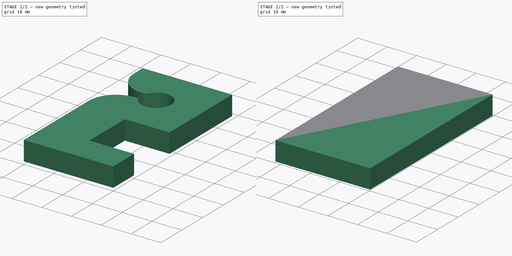
[diagram: build sequence overview — one tinted view per stage of 2, left to right]
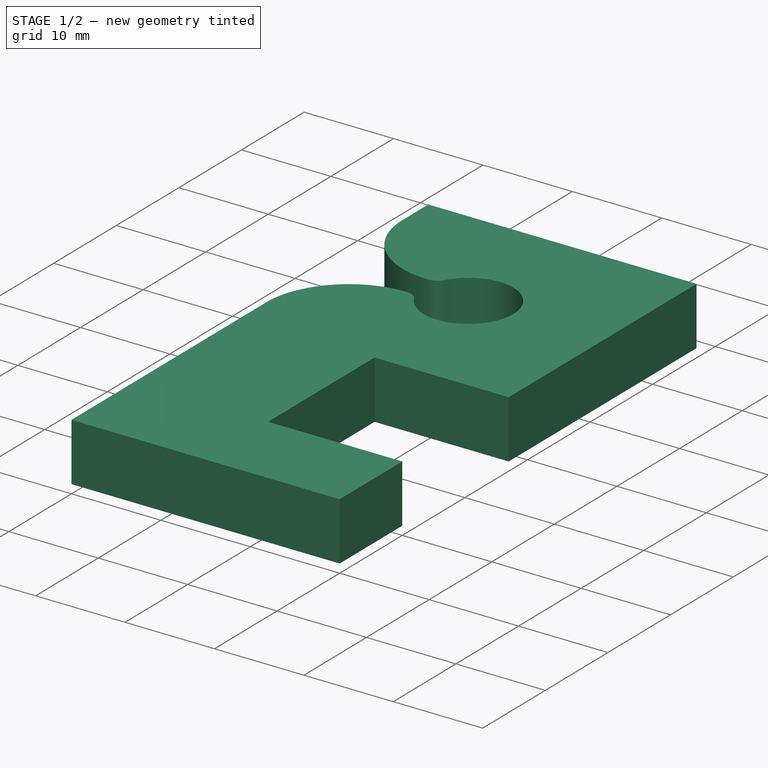
[diagram: stage 1 of 2 — iso view after this stage's code; geometry added in this stage tinted green]
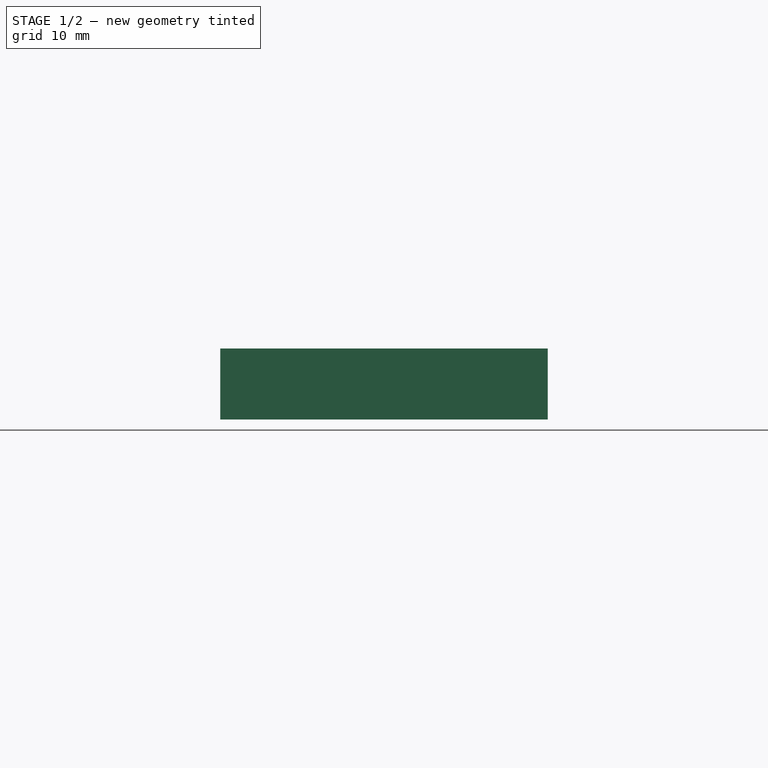
[diagram: stage 1 of 2 — front view after this stage's code; geometry added in this stage tinted green]
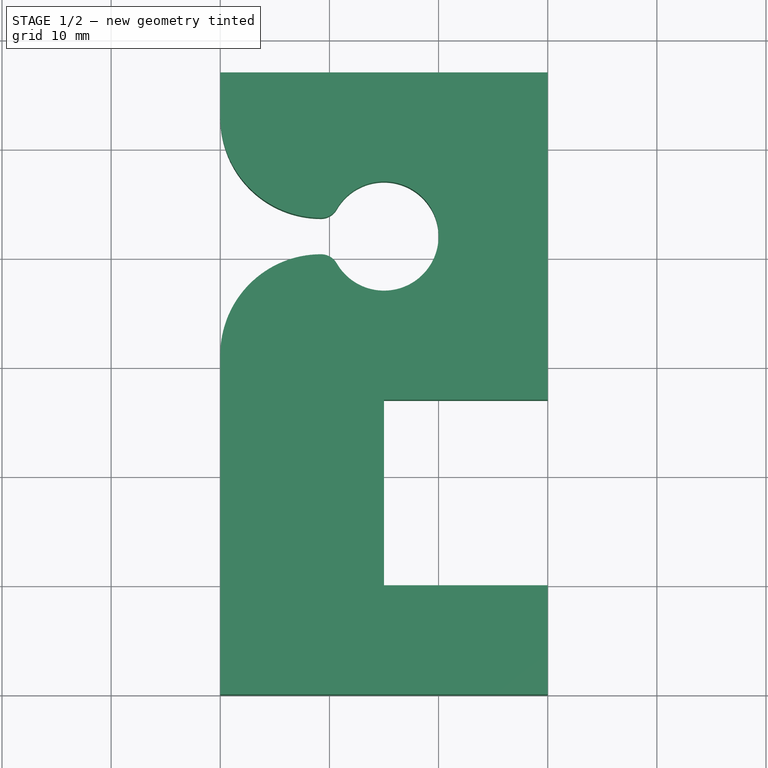
[diagram: stage 1 of 2 — top view after this stage's code; geometry added in this stage tinted green]
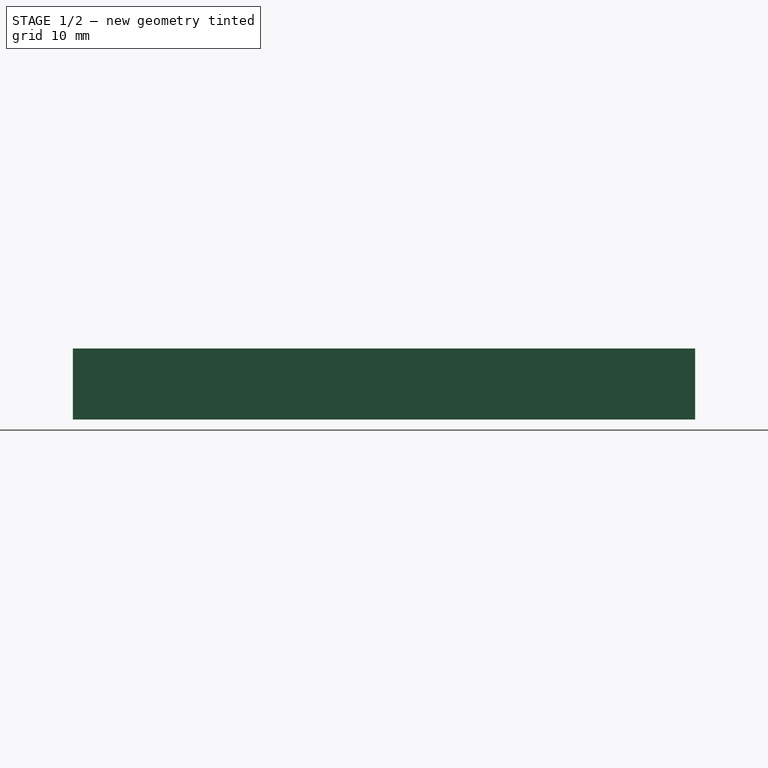
[diagram: stage 1 of 2 — right view after this stage's code; geometry added in this stage tinted green]
FCSTD DOCUMENT  (FreeCAD 0.18R)
Label: beater-rapier-guide
License: All rights reserved
LicenseURL: http://en.wikipedia.org/wiki/All_rights_reserved
objects: Part::FeaturePython×2, Path::FeaturePython×2, Sketcher::SketchObject×1, PartDesign::Pad×1, PartDesign::Body×1, Path::FeatureCompoundPython×1, App::FeaturePython×1, App::DocumentObjectGroup×1
note: 6 computed .brp shape members not serialized (recipe doc carries the construction recipe); baked Part::Feature solids carry a one-line shape summary decoded from their .brp

FEATURE [Sketcher::SketchObject] Sketch
  MapMode = 5
  Support = -> [XY_Plane]
  sketch-geometry (29):
    g0: LineSegment StartX=1.8e-15 StartY=52.8932 StartZ=0 EndX=1.8e-15 EndY=57 EndZ=0
    g1: LineSegment StartX=1.8e-15 StartY=57 StartZ=0 EndX=30 EndY=57 EndZ=0
    g2: LineSegment StartX=30 StartY=57 StartZ=0 EndX=30 EndY=27 EndZ=0
    g3: LineSegment StartX=30 StartY=27 StartZ=0 EndX=15 EndY=27 EndZ=0
    g4: LineSegment StartX=15 StartY=27 StartZ=0 EndX=15 EndY=10 EndZ=0
    g5: LineSegment StartX=15 StartY=10 StartZ=0 EndX=30 EndY=10 EndZ=0
    g6: LineSegment StartX=30 StartY=10 StartZ=0 EndX=30 EndY=0 EndZ=0
    g7: LineSegment StartX=30 StartY=0 StartZ=0 EndX=0 EndY=0 EndZ=0
    g8: LineSegment StartX=0 StartY=0 StartZ=0 EndX=0 EndY=31.1068 EndZ=0
    g9: ArcOfCircle CenterX=15 CenterY=42 CenterZ=0 NormalX=0 NormalY=0 NormalZ=1 AngleXU=0 Radius=5 StartAngle=3.66519 EndAngle=8.90118
    g10: LineSegment [constr] StartX=15 StartY=57 StartZ=0 EndX=15 EndY=42 EndZ=0
    g11: LineSegment [constr] StartX=15 StartY=42 StartZ=0 EndX=15 EndY=27 EndZ=0
    g12: LineSegment [constr] StartX=15 StartY=42 StartZ=0 EndX=5 EndY=42 EndZ=0
    g13: LineSegment [constr] StartX=10.6699 StartY=44.5 StartZ=0 EndX=15 EndY=42 EndZ=0
    g14: LineSegment [constr] StartX=10.6699 StartY=39.5 StartZ=0 EndX=15 EndY=42 EndZ=0
    g15: LineSegment [constr] StartX=10.6699 StartY=44.5 StartZ=0 EndX=9.2265 EndY=45.3333 EndZ=0
    g16: LineSegment [constr] StartX=9.2265 StartY=45.3333 StartZ=0 EndX=9.2265 EndY=43.6667 EndZ=0
    g17: LineSegment [constr] StartX=9.2265 StartY=43.6667 StartZ=0 EndX=9.2265 EndY=42 EndZ=0
    g18: LineSegment [constr] StartX=9.2265 StartY=42 StartZ=0 EndX=9.2265 EndY=40.3333 EndZ=0
    g19: LineSegment [constr] StartX=9.2265 StartY=40.3333 StartZ=0 EndX=9.2265 EndY=38.6667 EndZ=0
    g20: LineSegment [constr] StartX=9.2265 StartY=38.6667 StartZ=0 EndX=10.6699 EndY=39.5 EndZ=0
    g21: ArcOfCircle CenterX=9.2265 CenterY=45.3333 CenterZ=0 NormalX=0 NormalY=0 NormalZ=1 AngleXU=0 Radius=1.66667 StartAngle=4.71239 EndAngle=5.75959
    g22: ArcOfCircle CenterX=9.2265 CenterY=38.6667 CenterZ=0 NormalX=0 NormalY=0 NormalZ=1 AngleXU=0 Radius=1.66666 StartAngle=0.523593 EndAngle=1.5708
    g23: ArcOfCircle CenterX=9.2265 CenterY=31.1068 CenterZ=0 NormalX=0 NormalY=0 NormalZ=1 AngleXU=0 Radius=9.2265 StartAngle=1.5708 EndAngle=3.14159
    g24: LineSegment [constr] StartX=9.2265 StartY=40.3333 StartZ=0 EndX=9.2265 EndY=31.1068 EndZ=0
    g25: LineSegment [constr] StartX=9.2265 StartY=31.1068 StartZ=0 EndX=0 EndY=31.1068 EndZ=0
    g26: LineSegment [constr] StartX=1.8e-15 StartY=52.8932 StartZ=0 EndX=9.2265 EndY=52.8932 EndZ=0
    g27: LineSegment [constr] StartX=9.2265 StartY=52.8932 StartZ=0 EndX=9.2265 EndY=43.6667 EndZ=0
    g28: ArcOfCircle CenterX=9.2265 CenterY=52.8932 CenterZ=0 NormalX=0 NormalY=0 NormalZ=1 AngleXU=0 Radius=9.2265 StartAngle=3.14159 EndAngle=4.71239
  constraints (80):
    c: Coincident(g0,g1)
    c: Coincident(g1,g2)
    c: Coincident(g2,g3)
    c: Coincident(g3,g4)
    c: Coincident(g4,g5)
    c: Coincident(g5,g6)
    c: Coincident(g6,g7)
    c: Coincident(g7,g8)
    c: Equal(g1,g7)
    c: Horizontal(g1)
    c: Horizontal(g7)
    c: Horizontal(g3)
    c: Equal(g3,g5)
    c: Vertical(g4)
    c: Vertical(g2)
    c: Vertical(g6)
    c: Vertical(g8)
    c: Vertical(g0)
    c: DistanceX(g0,g1) = 30
    c: DistanceY(g2,g1) = 30
    c: Horizontal(g5)
    c: DistanceY(g6,g6) = 10
    c: Coincident(g10,g11)
    c: Coincident(g11,g3)
    c: PointOnObject(g10,g1)
    c: Coincident(g10,g9)
    c: Vertical(g10)
    c: Vertical(g11)
    c: Equal(g10,g11)
    c: Radius(g9) = 5
    c: Radius(g9) = 5
    c: Coincident(g12,g9)
    c: Coincident(g13,g9)
    c: Coincident(g9,g14)
    c: Coincident(g13,g9)
    c: Coincident(g9,g14)
    c: Horizontal(g12)
    c: Angle(g13,g12) = 0.523599
    c: Angle(g12,g14) = 0.523599
    c: Coincident(g15,g16)
    c: Coincident(g16,g17)
    c: PointOnObject(g17,g12)
    c: Coincident(g15,g9)
    c: Vertical(g16)
    c: Vertical(g17)
    c: Angle(g16,g15) = 1.0472
    c: Equal(g16,g17)
    c: Coincident(g18,g19)
    c: Coincident(g19,g20)
    c: Coincident(g20,g9)
    c: Vertical(g18)
    c: Vertical(g19)
    c: Equal(g18,g19)
    c: Coincident(g18,g17)
    c: Coincident(g21,g15)
    c: Coincident(g21,g9)
    c: Coincident(g21,g16)
    c: Coincident(g22,g19)
    c: Coincident(g22,g9)
    c: Coincident(g22,g18)
    c: Coincident(g24,g25)
    c: Coincident(g25,g23)
    c: Coincident(g24,g23)
    c: Coincident(g23,g22)
    c: Coincident(g24,g23)
    c: Angle(g24,g25) = 1.5708
    c: Vertical(g24)
    c: Coincident(g8,g23)
    c: Coincident(g26,g27)
    c: Coincident(g28,g26)
    c: Coincident(g28,g0)
    c: Coincident(g28,g27)
    c: Coincident(g28,g26)
    c: Coincident(g28,g21)
    c: Vertical(g27)
    c: Angle(g26,g27) = 1.5708
    c: DistanceX(g12,g12) = 10
    c: DistanceX(g3,g3) = 15
    c: DistanceY(g4,g4) = 17
    c: Coincident(g7,g-1)
FEATURE [PartDesign::Pad] Pad
  Length = 6.5
  Length2 = 100
  Profile = -> Sketch
  Type = 0
FEATURE [PartDesign::Body] Body
  Group = -> [Sketch,Pad]
  Origin = -> Origin
  Tip = -> Pad
FEATURE [Path::FeatureCompoundPython] Operations  # Path/CAM operation (typed FeaturePython)
  UsePlacements = false
FEATURE [App::FeaturePython] SetupSheet  # Path/CAM operation (typed FeaturePython)
  ClearanceHeightExpression = OpStockZMax+SetupSheet.ClearanceHeightOffset
  ClearanceHeightOffset = 5
  FinalDepthExpression = OpFinalDepth
  HorizRapid = 0
  SafeHeightExpression = OpStockZMax+SetupSheet.SafeHeightOffset
  SafeHeightOffset = 3
  StartDepthExpression = OpStartDepth
  StepDownExpression = OpToolDiameter
  VertRapid = 0
FEATURE [Part::FeaturePython] Clone  label="Model-Body"  # Draft clone (typed FeaturePython)
  AttacherType = Attacher::AttachEngine3D
  Fuse = false
  Objects = -> [Body]
  PathResource = Model
  Scale = (1,1,1)
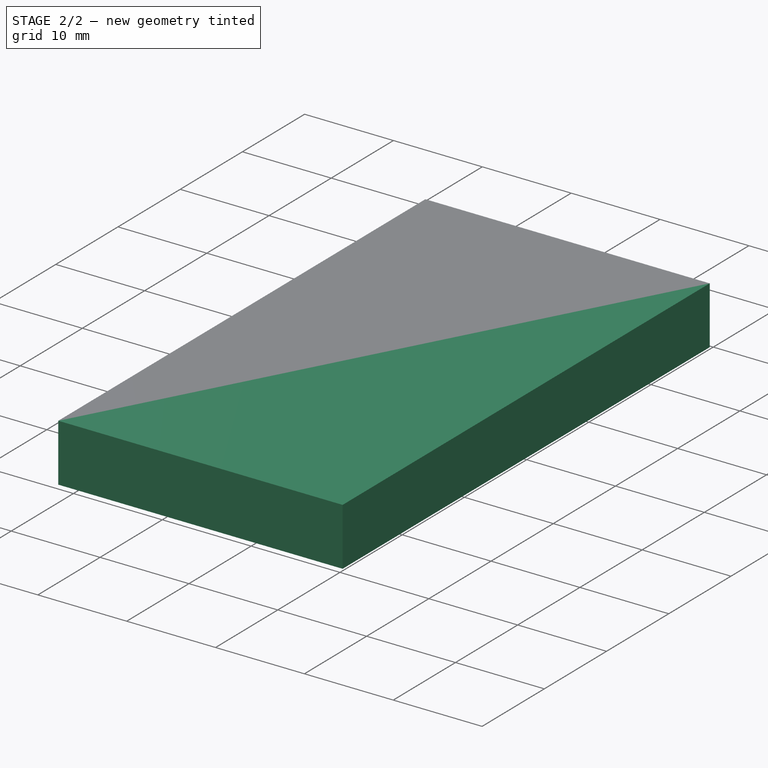
[diagram: stage 2 of 2 — iso view after this stage's code; geometry added in this stage tinted green]
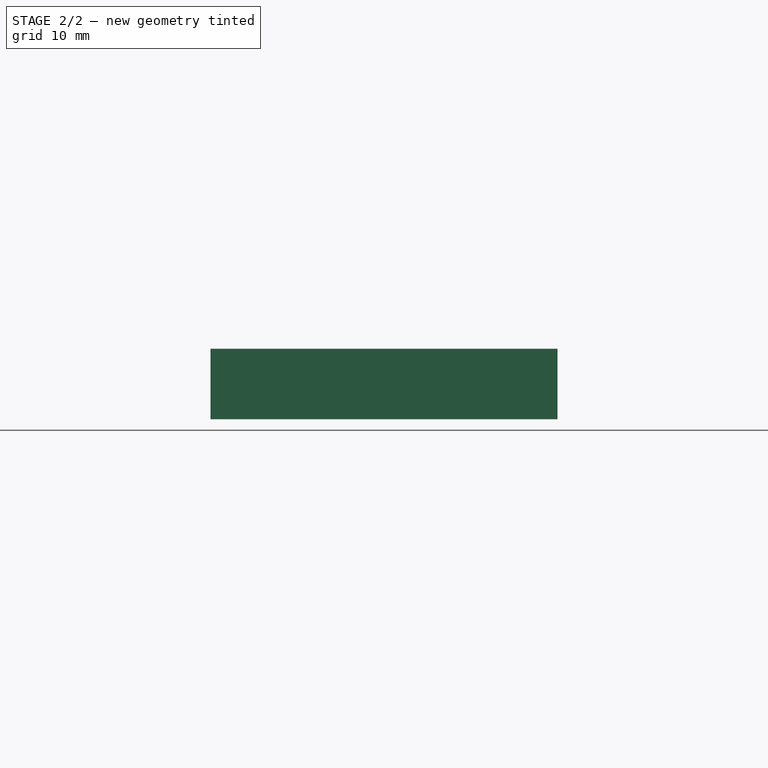
[diagram: stage 2 of 2 — front view after this stage's code; geometry added in this stage tinted green]
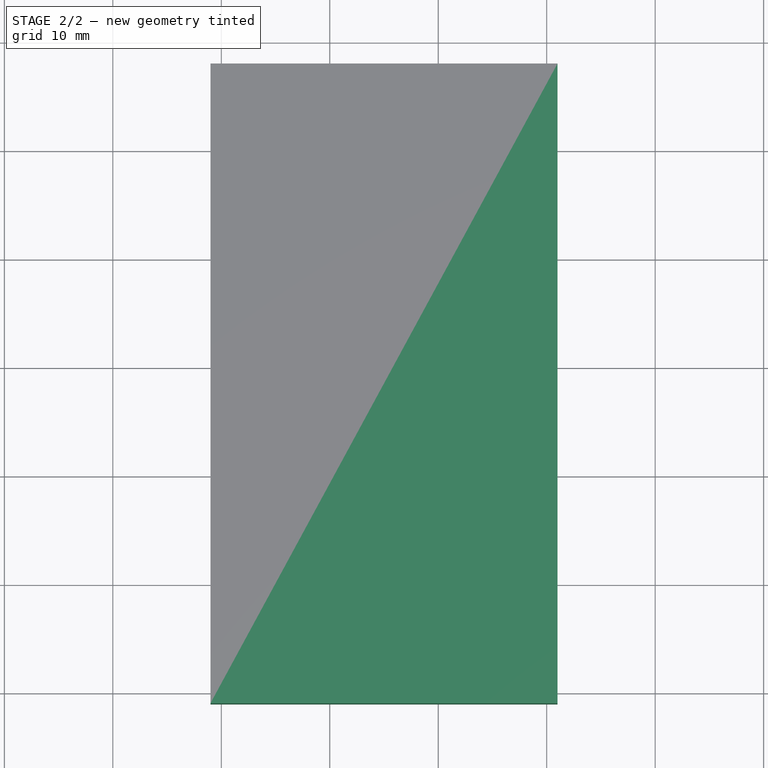
[diagram: stage 2 of 2 — top view after this stage's code; geometry added in this stage tinted green]
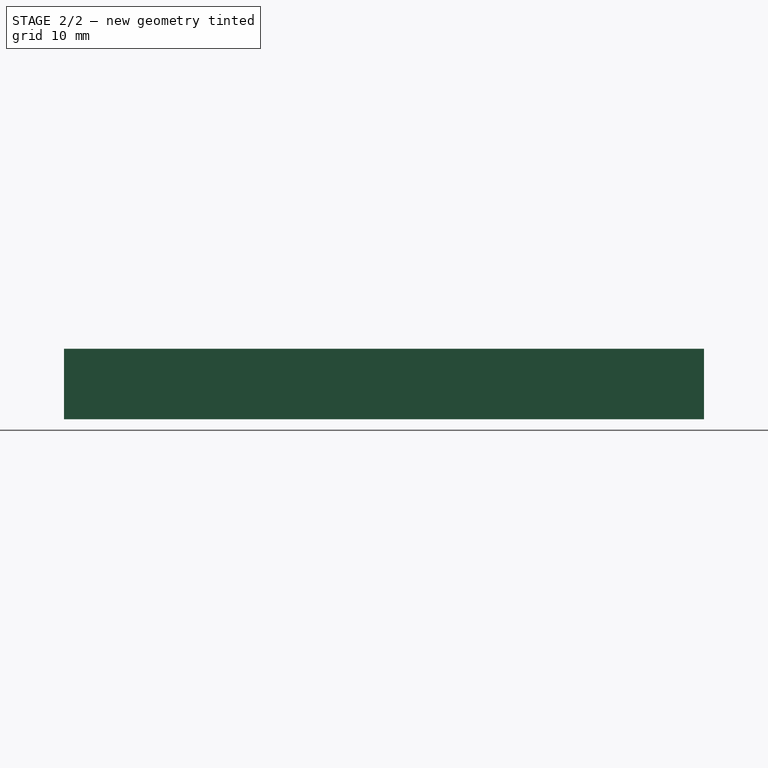
[diagram: stage 2 of 2 — right view after this stage's code; geometry added in this stage tinted green]
FEATURE [App::DocumentObjectGroup] Model
  Group = -> [Clone]
FEATURE [Path::FeaturePython] Default_Tool  label="Default Tool"  # Path/CAM operation (typed FeaturePython)
  HorizFeed = 0
  HorizRapid = 0
  SpindleDir = 0
  SpindleSpeed = 0
  ToolNumber = 1
  VertFeed = 0
  VertRapid = 0
  expr: HorizRapid = SetupSheet.HorizRapid
  expr: VertRapid = SetupSheet.VertRapid
FEATURE [Part::FeaturePython] Stock  # WARN: FeaturePython — macro-defined, semantics opaque (R4)
  Base = -> Model
  ExtXneg = 1
  ExtXpos = 1
  ExtYneg = 1
  ExtYpos = 1
  ExtZneg = 0
  ExtZpos = 0
  StockType = FromBase
FEATURE [Path::FeaturePython] Job  # Path/CAM operation (typed FeaturePython)
  GeometryTolerance = 0.01
  Model = -> Model
  Operations = -> Operations
  PostProcessor = 1
  SetupSheet = -> SetupSheet
  Stock = -> Stock
  ToolController = -> [Default_Tool]
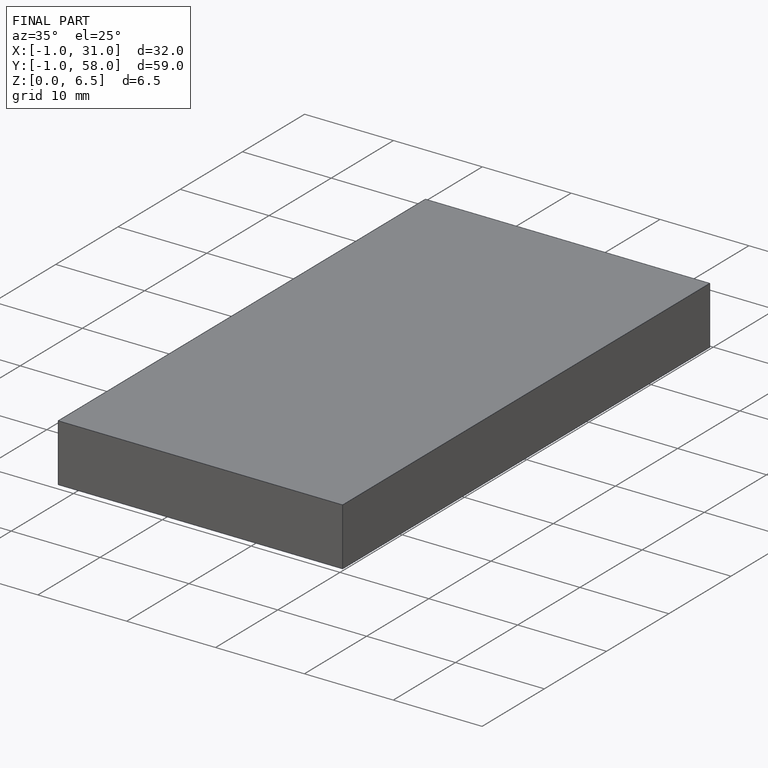
[diagram: finished part — iso view with bounding-box wireframe]
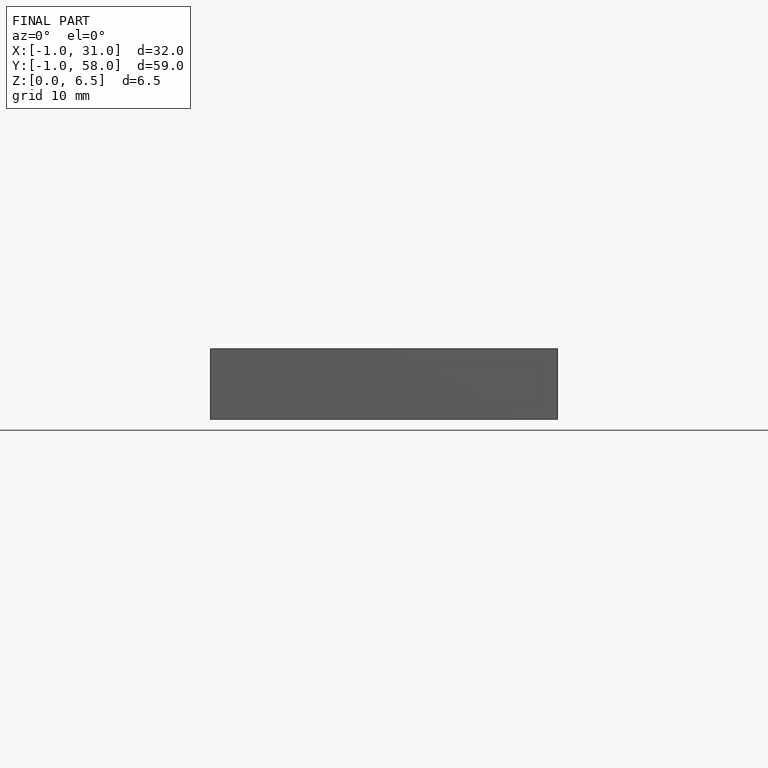
[diagram: finished part — front view with bounding-box wireframe]
